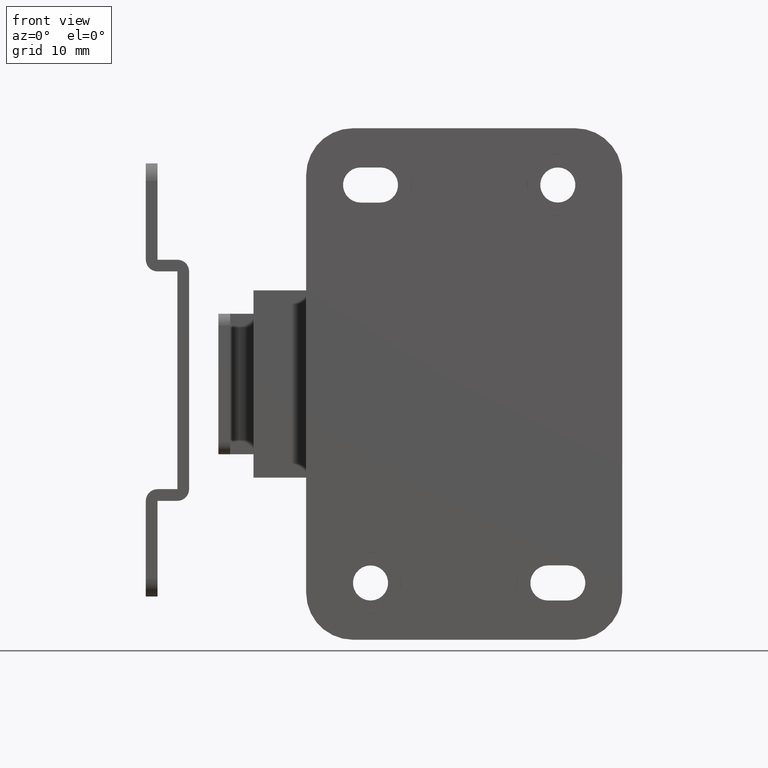
[diagram: clean part render]
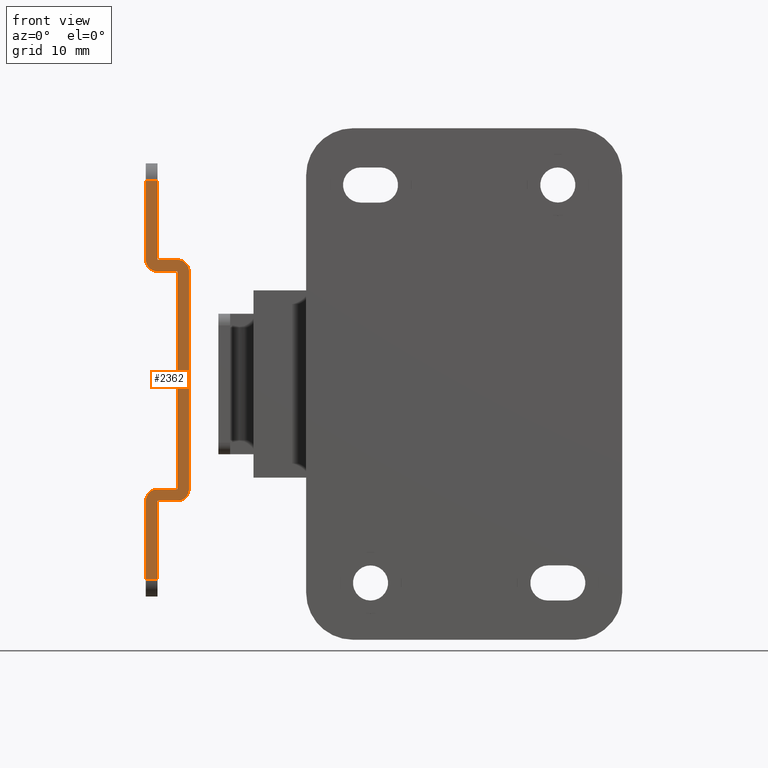
[diagram: same view with one face highlighted and labeled with its STEP entity id]
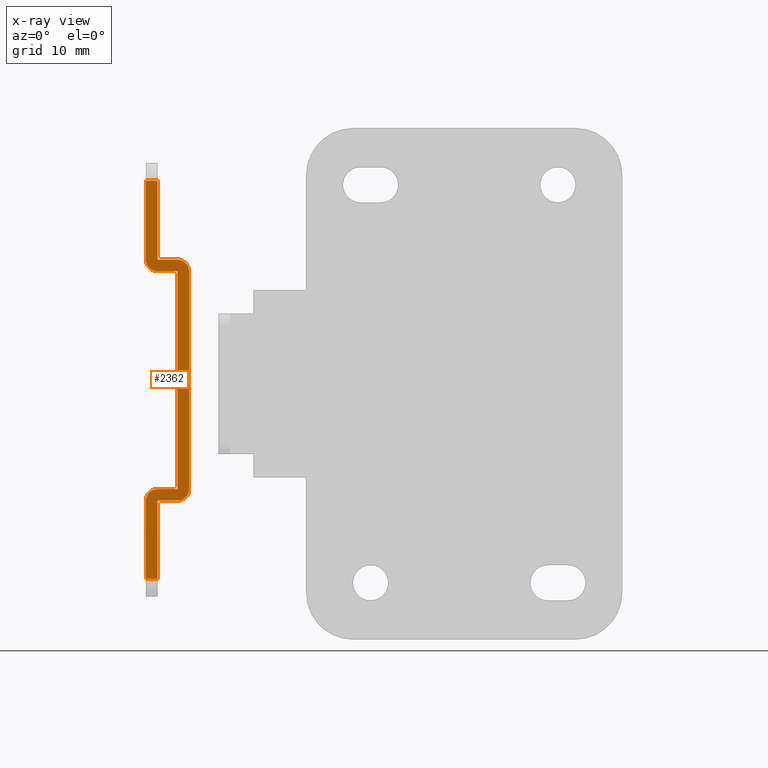
[diagram: x-ray of the same camera — body ghosted, the highlighted face saturated]
A machine part, front view. The second image highlights one B-rep face of the part: STEP entity #2362.
The next image is the same camera in x-ray: the body ghosted, the highlighted face saturated — about 0% of this face is hidden behind the body in this view.
In plain terms, the highlighted planar face has unit normal (-0, 1, 0).
Its self-contained STEP definition (entity closure, byte-faithful):
#127=PLANE('',#2593);
#275=LINE('',#3750,#502);
#282=LINE('',#3768,#509);
#286=LINE('',#3780,#513);
#290=LINE('',#3789,#517);
#291=LINE('',#3792,#518);
#295=LINE('',#3800,#522);
#299=LINE('',#3819,#526);
#302=LINE('',#3831,#529);
#306=LINE('',#3840,#533);
#308=LINE('',#3845,#535);
#309=LINE('',#3847,#536);
#310=LINE('',#3848,#537);
#502=VECTOR('',#3068,1.7);
#509=VECTOR('',#3083,1.69999999999999);
#513=VECTOR('',#3095,18.6);
#517=VECTOR('',#3101,1.7);
#518=VECTOR('',#3104,18.6);
#522=VECTOR('',#3110,1.7);
#526=VECTOR('',#3132,6.667349671529);
#529=VECTOR('',#3145,1.);
#533=VECTOR('',#3155,6.667349671529);
#535=VECTOR('',#3161,6.732650328471);
#536=VECTOR('',#3162,1.);
#537=VECTOR('',#3163,6.732650328471);
#770=FACE_OUTER_BOUND('',#934,.T.);
#934=EDGE_LOOP('',(#2029,#2030,#2031,#2032,#2033,#2034,#2035,#2036,#2037,
#2038,#2039,#2040,#2041,#2042,#2043,#2044));
#1048=CIRCLE('',#2565,1.);
#1051=CIRCLE('',#2570,1.);
#1053=CIRCLE('',#2577,1.);
#1055=CIRCLE('',#2580,1.);
#1187=VERTEX_POINT('',#3747);
#1188=VERTEX_POINT('',#3749);
#1190=VERTEX_POINT('',#3755);
#1192=VERTEX_POINT('',#3761);
#1195=VERTEX_POINT('',#3766);
#1197=VERTEX_POINT('',#3772);
#1199=VERTEX_POINT('',#3778);
#1201=VERTEX_POINT('',#3783);
#1203=VERTEX_POINT('',#3787);
#1204=VERTEX_POINT('',#3791);
#1206=VERTEX_POINT('',#3797);
#1209=VERTEX_POINT('',#3808);
#1213=VERTEX_POINT('',#3817);
#1217=VERTEX_POINT('',#3829);
#1220=VERTEX_POINT('',#3844);
#1221=VERTEX_POINT('',#3846);
#1463=EDGE_CURVE('',#1187,#1188,#275,.T.);
#1466=EDGE_CURVE('',#1188,#1190,#1048,.T.);
#1472=EDGE_CURVE('',#1195,#1192,#282,.T.);
#1474=EDGE_CURVE('',#1192,#1197,#1051,.T.);
#1478=EDGE_CURVE('',#1195,#1199,#286,.T.);
#1482=EDGE_CURVE('',#1203,#1201,#290,.T.);
#1483=EDGE_CURVE('',#1190,#1204,#291,.T.);
#1487=EDGE_CURVE('',#1199,#1206,#295,.T.);
#1490=EDGE_CURVE('',#1204,#1203,#1053,.T.);
#1493=EDGE_CURVE('',#1209,#1206,#1055,.T.);
#1497=EDGE_CURVE('',#1209,#1213,#299,.T.);
#1503=EDGE_CURVE('',#1217,#1213,#302,.T.);
#1508=EDGE_CURVE('',#1201,#1217,#306,.T.);
#1510=EDGE_CURVE('',#1220,#1187,#308,.T.);
#1511=EDGE_CURVE('',#1221,#1220,#309,.T.);
#1512=EDGE_CURVE('',#1197,#1221,#310,.F.);
#2029=ORIENTED_EDGE('',*,*,#1510,.F.);
#2030=ORIENTED_EDGE('',*,*,#1511,.F.);
#2031=ORIENTED_EDGE('',*,*,#1512,.F.);
#2032=ORIENTED_EDGE('',*,*,#1474,.F.);
#2033=ORIENTED_EDGE('',*,*,#1472,.F.);
#2034=ORIENTED_EDGE('',*,*,#1478,.T.);
#2035=ORIENTED_EDGE('',*,*,#1487,.T.);
#2036=ORIENTED_EDGE('',*,*,#1493,.F.);
#2037=ORIENTED_EDGE('',*,*,#1497,.T.);
#2038=ORIENTED_EDGE('',*,*,#1503,.F.);
#2039=ORIENTED_EDGE('',*,*,#1508,.F.);
#2040=ORIENTED_EDGE('',*,*,#1482,.F.);
#2041=ORIENTED_EDGE('',*,*,#1490,.F.);
#2042=ORIENTED_EDGE('',*,*,#1483,.F.);
#2043=ORIENTED_EDGE('',*,*,#1466,.F.);
#2044=ORIENTED_EDGE('',*,*,#1463,.F.);
#2362=ADVANCED_FACE('',(#770),#127,.F.);
#2565=AXIS2_PLACEMENT_3D('',#3756,#3073,#3074);
#2570=AXIS2_PLACEMENT_3D('',#3773,#3088,#3089);
#2577=AXIS2_PLACEMENT_3D('',#3804,#3116,#3117);
#2580=AXIS2_PLACEMENT_3D('',#3810,#3123,#3124);
#2593=AXIS2_PLACEMENT_3D('',#3843,#3159,#3160);
#3068=DIRECTION('',(0.,0.,1.));
#3073=DIRECTION('center_axis',(9.91841425521725E-33,-1.,0.));
#3074=DIRECTION('ref_axis',(0.707106781186547,7.01337797848143E-33,0.707106781186548));
#3083=DIRECTION('',(-1.23259516440783E-32,0.,-1.));
#3088=DIRECTION('center_axis',(9.91841425521725E-33,-1.,0.));
#3089=DIRECTION('ref_axis',(-0.707106781186548,-7.01337797848144E-33,-0.707106781186548));
#3095=DIRECTION('',(-1.,9.91841425521725E-33,0.));
#3101=DIRECTION('',(0.,0.,-1.));
#3104=DIRECTION('',(-1.,9.91841425521725E-33,0.));
#3110=DIRECTION('',(0.,0.,-1.));
#3116=DIRECTION('center_axis',(9.91841425521725E-33,-1.,0.));
#3117=DIRECTION('ref_axis',(-0.707106781186547,-7.01337797848143E-33,0.707106781186548));
#3123=DIRECTION('center_axis',(9.91841425521725E-33,-1.,0.));
#3124=DIRECTION('ref_axis',(0.707106781186548,7.01337797848144E-33,-0.707106781186547));
#3132=DIRECTION('',(-1.,1.98368280829466E-32,0.));
#3145=DIRECTION('',(0.,0.,-1.));
#3155=DIRECTION('',(-1.,1.98368280829466E-32,0.));
#3159=DIRECTION('center_axis',(9.91841425521725E-33,-1.,0.));
#3160=DIRECTION('ref_axis',(0.,0.,-1.));
#3161=DIRECTION('',(-1.,9.91841425521725E-33,0.));
#3162=DIRECTION('',(0.,0.,1.));
#3163=DIRECTION('',(-1.,9.91841425521725E-33,0.));
#3747=CARTESIAN_POINT('',(10.267349671529,7.250003,1.3));
#3749=CARTESIAN_POINT('',(10.267349671529,7.250003,3.));
#3750=CARTESIAN_POINT('',(10.267349671529,7.250003,1.725));
#3755=CARTESIAN_POINT('',(9.26734967152896,7.250003,4.));
#3756=CARTESIAN_POINT('Origin',(9.26734967152896,7.250003,3.));
#3761=CARTESIAN_POINT('',(9.26734967152896,7.250003,1.30000000000001));
#3766=CARTESIAN_POINT('',(9.26734967152896,7.250003,3.));
#3768=CARTESIAN_POINT('',(9.26734967152896,7.250003,2.4));
#3772=CARTESIAN_POINT('',(10.267349671529,7.250003,0.300000000000002));
#3773=CARTESIAN_POINT('Origin',(10.267349671529,7.250003,1.3));
#3778=CARTESIAN_POINT('',(-9.33265032847103,7.250003,3.));
#3780=CARTESIAN_POINT('',(-0.0999999999999801,7.250003,3.));
#3783=CARTESIAN_POINT('',(-10.332650328471,7.250003,1.3));
#3787=CARTESIAN_POINT('',(-10.332650328471,7.250003,3.));
#3789=CARTESIAN_POINT('',(-10.332650328471,7.250003,1.725));
#3791=CARTESIAN_POINT('',(-9.33265032847103,7.250003,4.));
#3792=CARTESIAN_POINT('',(-0.0999999999999801,7.250003,4.));
#3797=CARTESIAN_POINT('',(-9.33265032847103,7.250003,1.3));
#3800=CARTESIAN_POINT('',(-9.33265032847103,7.250003,2.4));
#3804=CARTESIAN_POINT('Origin',(-9.33265032847103,7.250003,3.));
#3808=CARTESIAN_POINT('',(-10.332650328471,7.250003,0.299999999999998));
#3810=CARTESIAN_POINT('Origin',(-10.332650328471,7.250003,1.3));
#3817=CARTESIAN_POINT('',(-17.,7.250003,0.299999999999998));
#3819=CARTESIAN_POINT('',(-0.149999999999998,7.250003,0.299999999999998));
#3829=CARTESIAN_POINT('',(-17.,7.250003,1.3));
#3831=CARTESIAN_POINT('',(-17.,7.250003,1.3));
#3840=CARTESIAN_POINT('',(-0.149999999999998,7.250003,1.3));
#3843=CARTESIAN_POINT('Origin',(0.150000000000023,7.250003,1.3));
#3844=CARTESIAN_POINT('',(17.,7.250003,1.3));
#3845=CARTESIAN_POINT('',(0.150000000000023,7.250003,1.3));
#3846=CARTESIAN_POINT('',(17.,7.250003,0.299999999999998));
#3847=CARTESIAN_POINT('',(17.,7.250003,1.3));
#3848=CARTESIAN_POINT('',(0.150000000000023,7.250003,0.300000000000002));